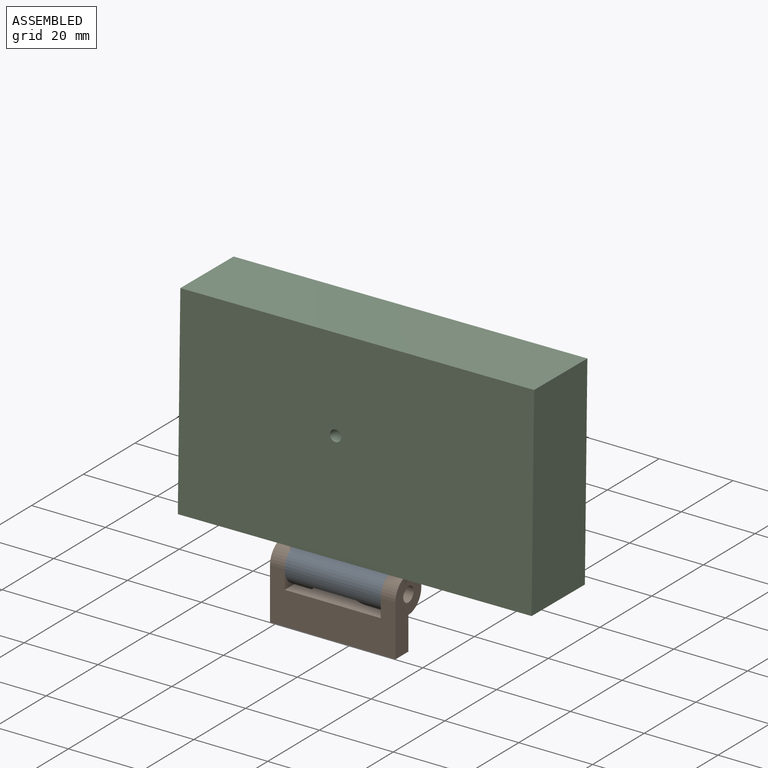
[diagram: assembled view]
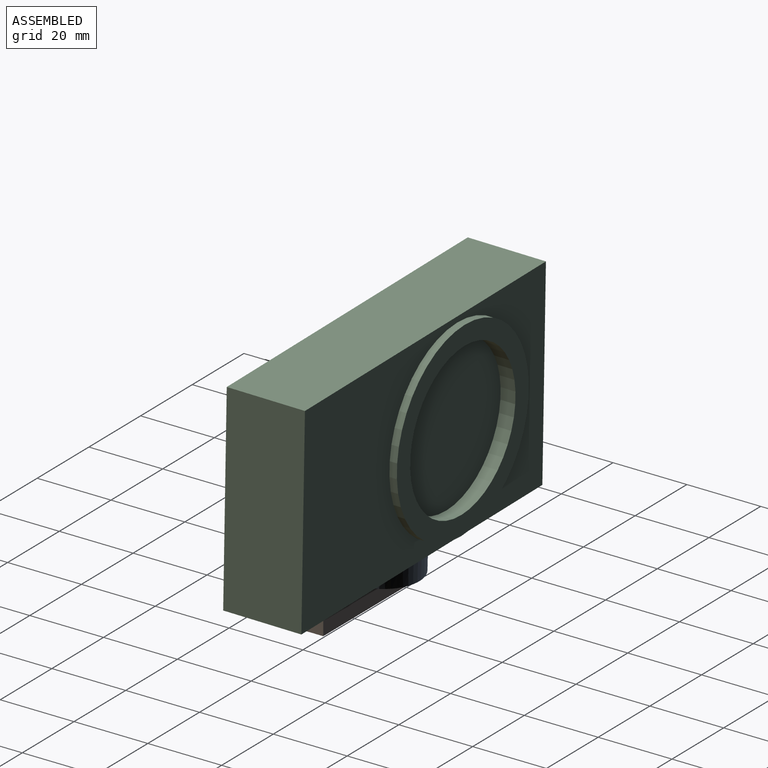
[diagram: assembled view, second angle]
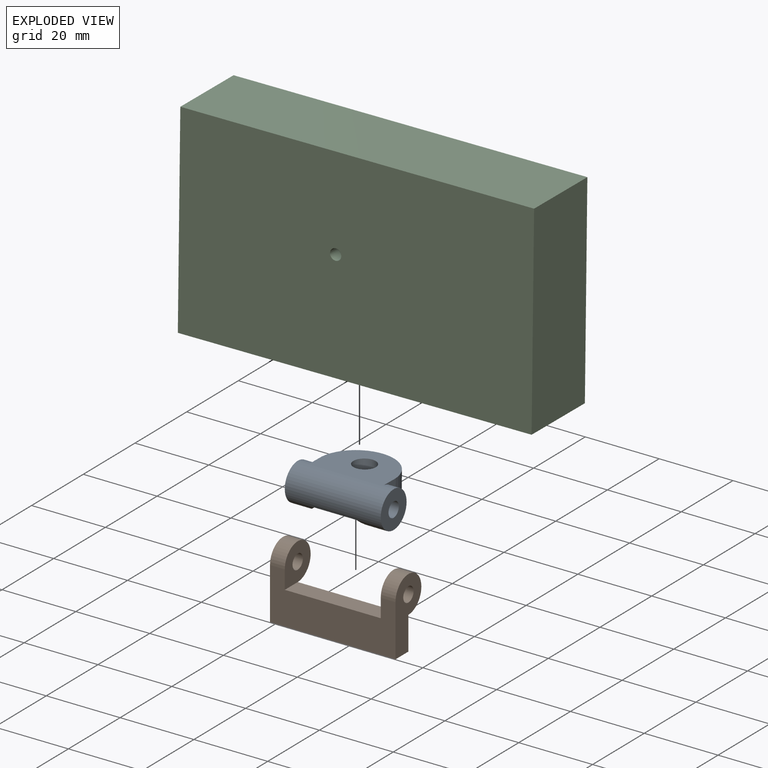
[diagram: exploded view]
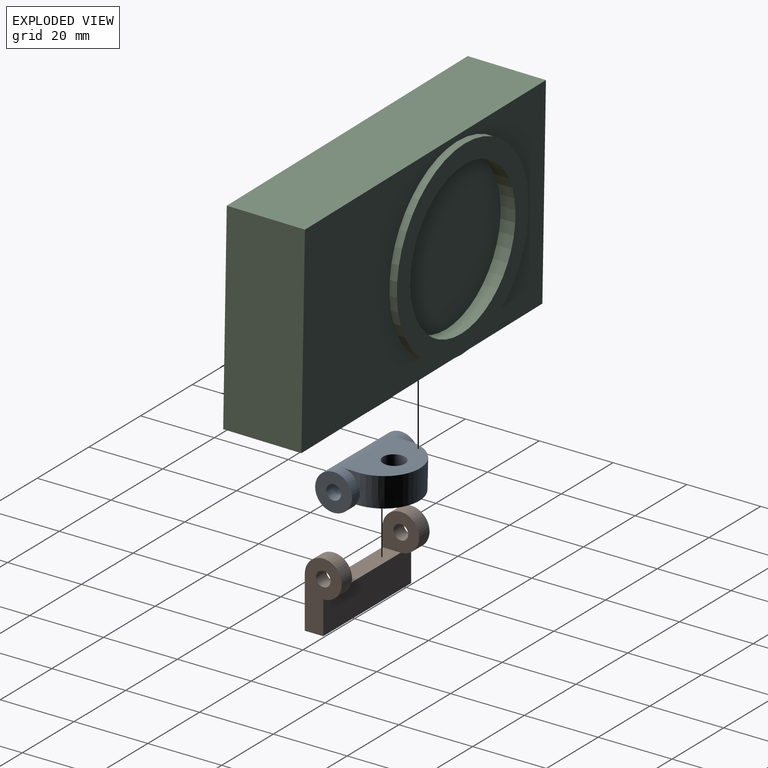
[diagram: exploded view, second angle]
ASSEMBLY  parts=3 mates=4
PART A: 14 faces, bbox 26x10x19.2 mm
  f0: cylinder r=5mm len=26mm, axis (-1,0,0), area 435.2mm2, adj f1,f2,f3,f6,f7,f8,f9,f10
  f1: plane 20x9.23mm, normal (0,-1,0), area 1mm2, adj f0,f4,f9
  f2: plane 5x5mm, normal (-1,0,0), area 5.4mm2, adj f0,f4,f6
  f3: plane 5x5mm, normal (1,0,0), area 5.4mm2, adj f0,f4,f6
  f4: cylinder r=10.03mm len=20mm, axis (0,1,0), area 149.5mm2, adj f1,f2,f3,f6
  f5: cylinder r=3mm len=8mm, axis (0,1,0), area 150.8mm2, adj f6,f10
  f6: plane 20x14.23mm, normal (0,1,0), area 213.6mm2, adj f0,f2,f3,f4,f5
  f7: plane 10x10mm, normal (-1,0,0), area 66mm2, adj f0,f11
  f8: plane 10x10mm, normal (1,0,0), area 66mm2, adj f0,f11
  f9: cylinder r=10mm len=20mm, axis (0,1,0), area 91.3mm2, adj f0,f1,f10
  f10: plane 20x18.19mm, normal (0,-1,0), area 271.8mm2, adj f0,f5,f9,f12,f13
  f11: cylinder r=2mm len=26mm, axis (1,0,0), area 326.7mm2, adj f7,f8
  f12: cylinder r=10mm len=8mm, axis (0,1,0), area 12.8mm2, adj f0,f10
  f13: cylinder r=10mm len=8mm, axis (0,1,0), area 12.8mm2, adj f0,f10
PART B: 12 faces, bbox 34x10x19 mm
  f0: plane 34x5mm, normal (0,0,-1), area 170mm2, adj f1,f5,f6,f7
  f1: plane 19x10mm, normal (1,0,0), area 116.3mm2, adj f0,f6,f7,f8,f11
  f2: plane 10x10mm, normal (-1,0,0), area 71.3mm2, adj f3,f6,f8,f11
  f3: plane 26x5mm, normal (0,0,1), area 130mm2, adj f2,f4,f6,f7
  f4: plane 10x10mm, normal (1,0,0), area 71.3mm2, adj f3,f6,f9,f10
  f5: plane 19x10mm, normal (-1,0,0), area 116.3mm2, adj f0,f6,f7,f9,f10
  f6: plane 34x14mm, normal (0,-1,0), area 346mm2, adj f0,f1,f2,f3,f4,f5,f8,f9
  f7: plane 34x9mm, normal (0,1,0), area 306mm2, adj f0,f1,f3,f5,f8,f9
  f8: cylinder r=5mm len=10mm, axis (1,0,0), area 94.2mm2, adj f1,f2,f6,f7
  f9: cylinder r=5mm len=10mm, axis (-1,0,0), area 94.2mm2, adj f4,f5,f6,f7
  f10: cylinder r=2mm len=4mm, axis (1,0,0), area 50.3mm2, adj f4,f5
  f11: cylinder r=2mm len=4mm, axis (1,0,0), area 50.3mm2, adj f1,f2
PART C: 14 faces, bbox 95x23x55 mm
  f0: plane 95x21mm, normal (0,0,-1), area 1966.7mm2, adj f1,f3,f4,f5,f10
  f1: plane 55x21mm, normal (1,0,0), area 1155mm2, adj f0,f2,f4,f5
  f2: plane 95x21mm, normal (0,0,1), area 1995mm2, adj f1,f3,f4,f5
  f3: plane 55x21mm, normal (-1,0,0), area 1155mm2, adj f0,f2,f4,f5
  f4: plane 95x55mm, normal (0,-1,0), area 3101.3mm2, adj f0,f1,f2,f3,f6
  f5: plane 95x55mm, normal (0,1,0), area 5217.9mm2, adj f0,f1,f2,f3,f12
  f6: cylinder r=26mm len=52mm, axis (0,1,0), area 326.7mm2, adj f4,f7
  f7: plane 52x52mm, normal (0,-1,0), area 767.3mm2, adj f6,f8
  f8: cylinder r=20.78mm len=41.56mm, axis (0,-1,0), area 522.2mm2, adj f7,f9
  f9: plane 41.56x41.56mm, normal (0,-1,0), area 1356.4mm2, adj f8
  f10: cylinder r=3mm len=6mm, axis (0,0,-1), area 113.1mm2, adj f0,f11
  f11: plane 6x6mm, normal (0,0,-1), area 28.3mm2, adj f10
  f12: cylinder r=1.5mm len=5mm, axis (0,1,0), area 47.1mm2, adj f5,f13
  f13: plane 3x3mm, normal (0,1,0), area 7.1mm2, adj f12
PLACE A rot(axis=(0,-0.71,-0.7),180deg) t=(-2.2,6.16,14.16)mm
PLACE B t=(-2.2,1.88,2.23)mm fixed
PLACE C rot(axis=(0,-0.01,-1),179.3deg) t=(2.43,-0.76,41.79)mm
MATE cylindrical B.f8 <-> A.f0  axis (1,0,0) through (-15.2,1.88,9.23)mm
MATE planar C.f0 <-> A.f6  axis (0,-0.02,-1) through (2.36,9.25,14.11)mm
MATE planar A.f0 <-> B.f8  axis (-1,0,0) through (-15.2,1.88,9.23)mm
MATE cylindrical C.f10 <-> A.f5  axis (0,-0.02,-1) through (-2.2,9.2,14.11)mm
